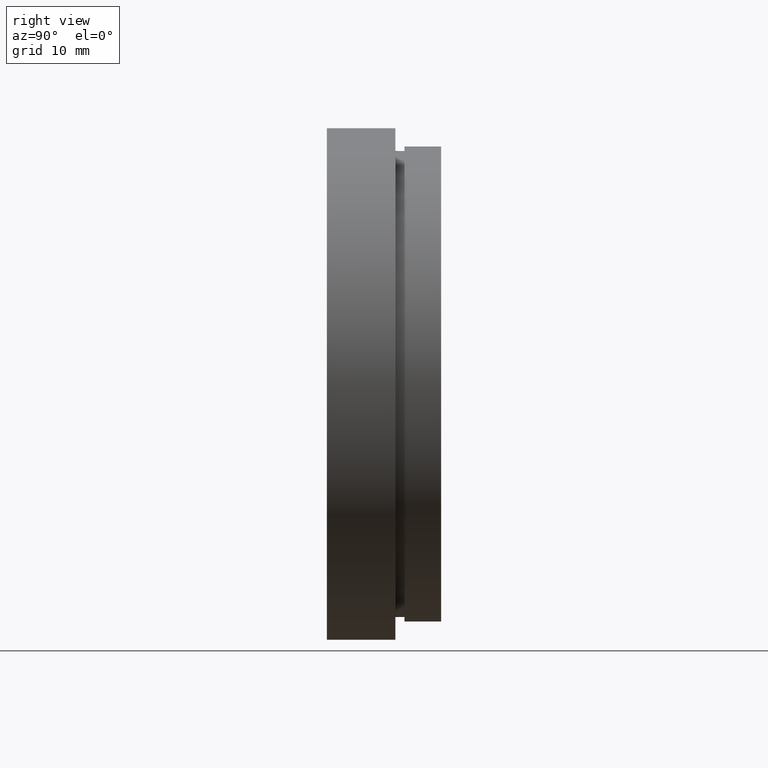
[diagram: clean part render]
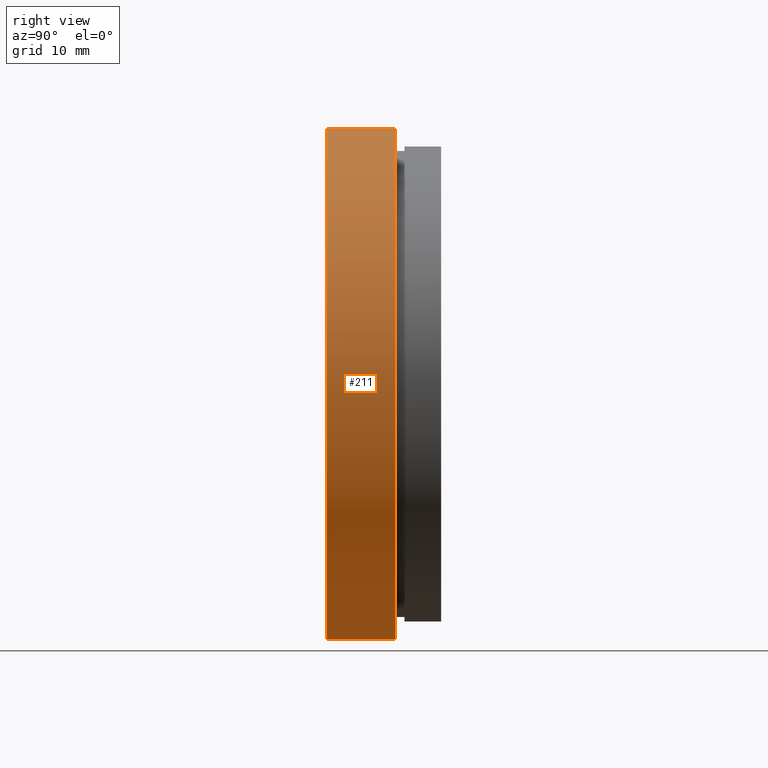
[diagram: same view with one face highlighted and labeled with its STEP entity id]
A machine part, right view. The second image highlights one B-rep face of the part: STEP entity #211.
In plain terms, the highlighted cylindrical surface (partial cylindrical patch) has radius 28 mm, axis along (-0, 1, -0).
Its self-contained STEP definition (entity closure, byte-faithful):
#1 = DIRECTION ( 'NONE',  ( -0.0000000000000000000, 1.000000000000000000, -0.0000000000000000000 ) ) ;
#19 = EDGE_CURVE ( 'NONE', #575, #363, #423, .T. ) ;
#27 = FACE_OUTER_BOUND ( 'NONE', #31, .T. ) ;
#31 = EDGE_LOOP ( 'NONE', ( #624, #587, #541, #139 ) ) ;
#41 = DIRECTION ( 'NONE',  ( 0.0000000000000000000, 0.0000000000000000000, 1.000000000000000000 ) ) ;
#55 = CARTESIAN_POINT ( 'NONE',  ( 0.0000000000000000000, 7.499999999999978700, 0.0000000000000000000 ) ) ;
#74 = AXIS2_PLACEMENT_3D ( 'NONE', #100, #1, #41 ) ;
#91 = CARTESIAN_POINT ( 'NONE',  ( 3.429011037612590900E-015, -2.775557561562891400E-014, -28.00000000000001800 ) ) ;
#100 = CARTESIAN_POINT ( 'NONE',  ( 0.0000000000000000000, 161.3761669434274500, 0.0000000000000000000 ) ) ;
#106 = DIRECTION ( 'NONE',  ( -0.0000000000000000000, 1.000000000000000000, -0.0000000000000000000 ) ) ;
#122 = DIRECTION ( 'NONE',  ( -0.0000000000000000000, 1.000000000000000000, -0.0000000000000000000 ) ) ;
#125 = CARTESIAN_POINT ( 'NONE',  ( 0.0000000000000000000, -2.775557561562891400E-014, 0.0000000000000000000 ) ) ;
#137 = VERTEX_POINT ( 'NONE', #373 ) ;
#139 = ORIENTED_EDGE ( 'NONE', *, *, #372, .F. ) ;
#151 = CARTESIAN_POINT ( 'NONE',  ( 3.429011037612590900E-015, 7.499999999999978700, -28.00000000000001800 ) ) ;
#203 = DIRECTION ( 'NONE',  ( -0.0000000000000000000, 1.000000000000000000, -0.0000000000000000000 ) ) ;
#211 = ADVANCED_FACE ( 'NONE', ( #27 ), #389, .T. ) ;
#287 = CARTESIAN_POINT ( 'NONE',  ( 0.0000000000000000000, 161.3761669434274500, 28.00000000000001800 ) ) ;
#317 = AXIS2_PLACEMENT_3D ( 'NONE', #125, #122, #604 ) ;
#336 = LINE ( 'NONE', #400, #479 ) ;
#346 = DIRECTION ( 'NONE',  ( -0.0000000000000000000, 1.000000000000000000, -0.0000000000000000000 ) ) ;
#351 = LINE ( 'NONE', #287, #471 ) ;
#363 = VERTEX_POINT ( 'NONE', #91 ) ;
#372 = EDGE_CURVE ( 'NONE', #575, #137, #351, .T. ) ;
#373 = CARTESIAN_POINT ( 'NONE',  ( 0.0000000000000000000, 7.499999999999978700, 28.00000000000001800 ) ) ;
#389 = CYLINDRICAL_SURFACE ( 'NONE', #74, 28.00000000000001800 ) ;
#397 = EDGE_CURVE ( 'NONE', #137, #506, #499, .T. ) ;
#400 = CARTESIAN_POINT ( 'NONE',  ( 3.429011037612590900E-015, 161.3761669434274500, -28.00000000000001800 ) ) ;
#411 = EDGE_CURVE ( 'NONE', #363, #506, #336, .T. ) ;
#423 = CIRCLE ( 'NONE', #317, 28.00000000000001800 ) ;
#471 = VECTOR ( 'NONE', #346, 1000.000000000000000 ) ;
#479 = VECTOR ( 'NONE', #106, 1000.000000000000000 ) ;
#499 = CIRCLE ( 'NONE', #601, 28.00000000000001800 ) ;
#506 = VERTEX_POINT ( 'NONE', #151 ) ;
#529 = CARTESIAN_POINT ( 'NONE',  ( 0.0000000000000000000, -2.775557561562891400E-014, 28.00000000000001800 ) ) ;
#541 = ORIENTED_EDGE ( 'NONE', *, *, #397, .F. ) ;
#575 = VERTEX_POINT ( 'NONE', #529 ) ;
#587 = ORIENTED_EDGE ( 'NONE', *, *, #411, .T. ) ;
#592 = DIRECTION ( 'NONE',  ( 0.0000000000000000000, 0.0000000000000000000, 1.000000000000000000 ) ) ;
#601 = AXIS2_PLACEMENT_3D ( 'NONE', #55, #203, #592 ) ;
#604 = DIRECTION ( 'NONE',  ( 0.0000000000000000000, 0.0000000000000000000, 1.000000000000000000 ) ) ;
#624 = ORIENTED_EDGE ( 'NONE', *, *, #19, .T. ) ;